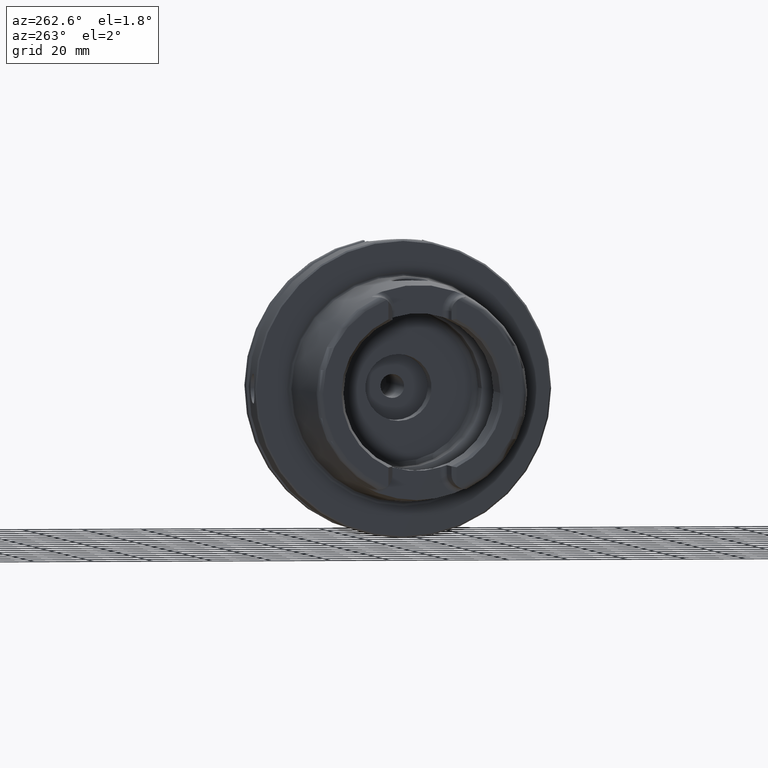
[diagram: clean part render]
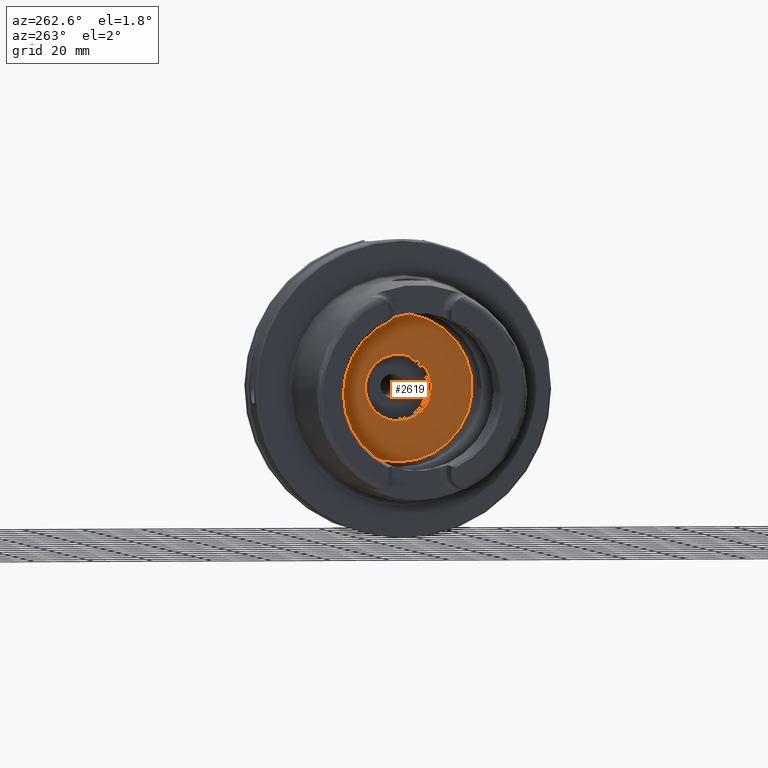
[diagram: same view with one face highlighted and labeled with its STEP entity id]
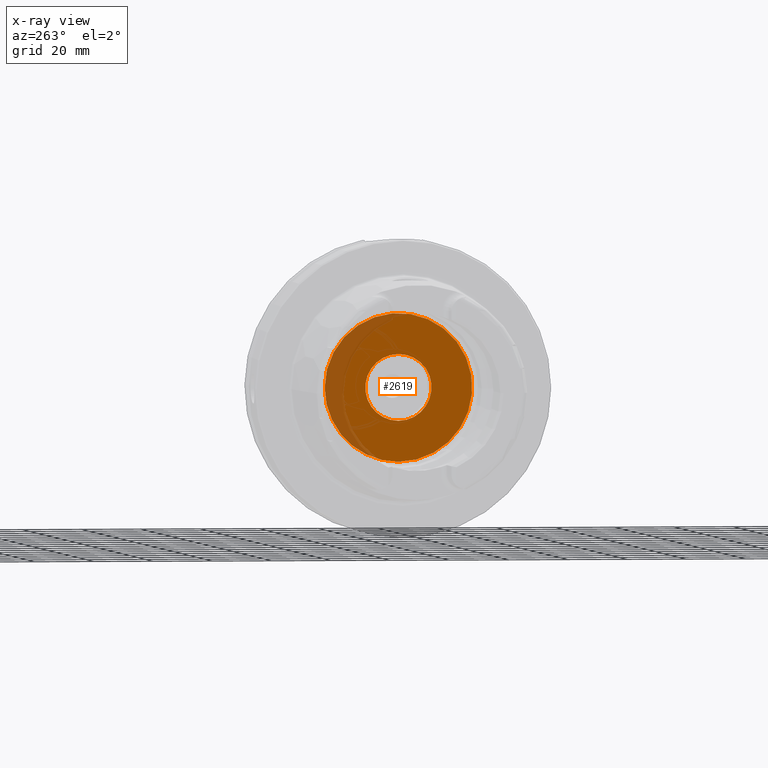
[diagram: x-ray of the same camera — body ghosted, the highlighted face saturated]
A machine part, auxiliary view. The second image highlights one B-rep face of the part: STEP entity #2619.
The next image is the same camera in x-ray: the body ghosted, the highlighted face saturated — about 19% of this face is hidden behind the body in this view.
In plain terms, the highlighted planar face has unit normal (1, 0, 0).
Its self-contained STEP definition (entity closure, byte-faithful):
#101=FACE_BOUND('',#468,.T.);
#137=PLANE('',#2970);
#325=FACE_OUTER_BOUND('',#467,.T.);
#467=EDGE_LOOP('',(#2363,#2364));
#468=EDGE_LOOP('',(#2365,#2366));
#905=CIRCLE('',#2964,11.188101);
#906=CIRCLE('',#2965,11.188101);
#910=CIRCLE('',#2971,24.9);
#911=CIRCLE('',#2972,24.9);
#1204=VERTEX_POINT('',#5492);
#1205=VERTEX_POINT('',#5493);
#1209=VERTEX_POINT('',#5505);
#1210=VERTEX_POINT('',#5506);
#1602=EDGE_CURVE('',#1204,#1205,#905,.T.);
#1603=EDGE_CURVE('',#1205,#1204,#906,.T.);
#1608=EDGE_CURVE('',#1209,#1210,#910,.T.);
#1609=EDGE_CURVE('',#1210,#1209,#911,.T.);
#2363=ORIENTED_EDGE('',*,*,#1608,.T.);
#2364=ORIENTED_EDGE('',*,*,#1609,.T.);
#2365=ORIENTED_EDGE('',*,*,#1602,.T.);
#2366=ORIENTED_EDGE('',*,*,#1603,.T.);
#2619=ADVANCED_FACE('',(#325,#101),#137,.F.);
#2964=AXIS2_PLACEMENT_3D('',#5494,#3742,#3743);
#2965=AXIS2_PLACEMENT_3D('',#5495,#3744,#3745);
#2970=AXIS2_PLACEMENT_3D('',#5504,#3755,#3756);
#2971=AXIS2_PLACEMENT_3D('',#5507,#3757,#3758);
#2972=AXIS2_PLACEMENT_3D('',#5508,#3759,#3760);
#3742=DIRECTION('center_axis',(1.,0.,0.));
#3743=DIRECTION('ref_axis',(0.,0.,1.));
#3744=DIRECTION('center_axis',(1.,0.,0.));
#3745=DIRECTION('ref_axis',(0.,0.,1.));
#3755=DIRECTION('center_axis',(1.,0.,0.));
#3756=DIRECTION('ref_axis',(0.,0.,-1.));
#3757=DIRECTION('center_axis',(-1.,0.,0.));
#3758=DIRECTION('ref_axis',(0.,0.,1.));
#3759=DIRECTION('center_axis',(-1.,0.,0.));
#3760=DIRECTION('ref_axis',(0.,0.,1.));
#5492=CARTESIAN_POINT('',(12.5,0.,11.188101));
#5493=CARTESIAN_POINT('',(12.5,-1.37014720781873E-15,-11.188101));
#5494=CARTESIAN_POINT('Origin',(12.5,0.,0.));
#5495=CARTESIAN_POINT('Origin',(12.5,0.,0.));
#5504=CARTESIAN_POINT('Origin',(12.5,24.9,0.));
#5505=CARTESIAN_POINT('',(12.5,24.9,0.));
#5506=CARTESIAN_POINT('',(12.5,-3.04937052987691E-15,-24.9));
#5507=CARTESIAN_POINT('Origin',(12.5,0.,0.));
#5508=CARTESIAN_POINT('Origin',(12.5,0.,0.));